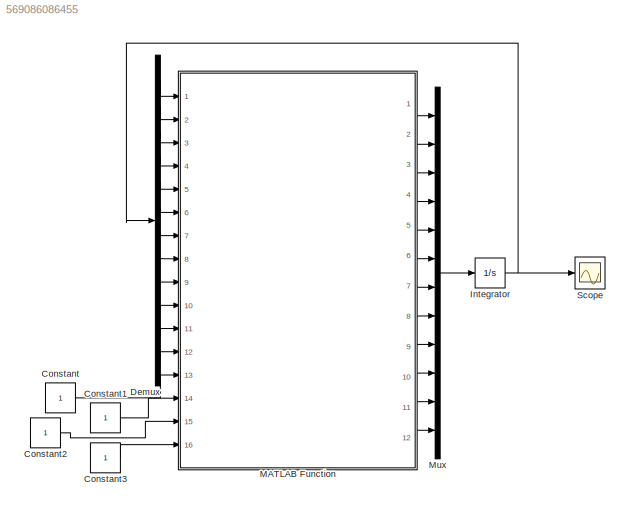
MODEL slx_569086086455
KIND model
CONFIG AbsTol = auto
CONFIG EnableMultiTasking = off
CONFIG FixedStep = auto
CONFIG MaxStep = auto
CONFIG MinStep = auto
CONFIG RelTol = 1e-3
CONFIG SampleTimeConstraint = Unconstrained
CONFIG SolverName = VariableStepAuto
CONFIG StartTime = 0.0
CONFIG StopTime = 10.0
BLOCK [Constant] Constant
BLOCK [Constant] Constant1
BLOCK [Constant] Constant2
BLOCK [Constant] Constant3
BLOCK [Demux] Demux
  Outputs = 12
  Ports = [1, 12]
BLOCK [Integrator] Integrator
  InitialCondition = [0;0;0;0;0;0;0;0;0;0;0;0]
  Ports = [1, 1]
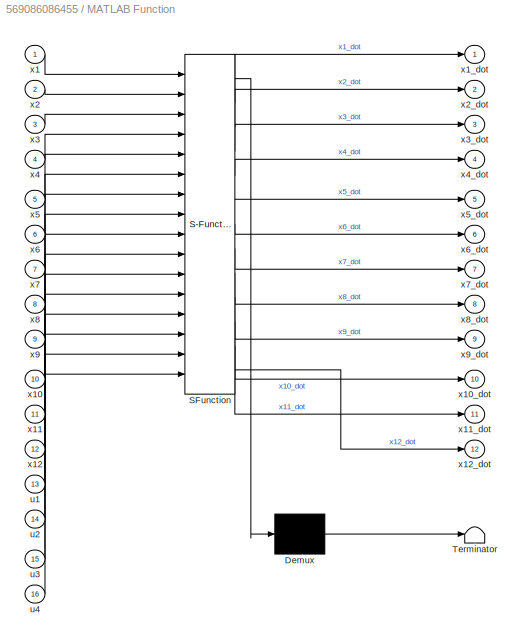
BLOCK [SubSystem] MATLAB Function
  ErrorFcn = Stateflow.Translate.translate
  PermitHierarchicalResolution = ExplicitOnly
  Ports = [16, 12]
  RequestExecContextInheritance = off
  SFBlockType = MATLAB Function
  TreatAsAtomicUnit = on
BLOCK [Demux] MATLAB Function/ Demux 
  Outputs = 1
  Ports = [1, 1]
BLOCK [S-Function] MATLAB Function/ SFunction 
  EnableBusSupport = on
  FunctionName = sf_sfun
  PortCounts = [16 13]
  Ports = [16, 13]
  SFcnIsStateOwnerBlock = off
  SFunctionDeploymentMode = off
  Tag = Stateflow S-Function 2
BLOCK [Terminator] MATLAB Function/ Terminator 
BLOCK [Inport] MATLAB Function/u1
  Port = 13
BLOCK [Inport] MATLAB Function/u2
  Port = 14
BLOCK [Inport] MATLAB Function/u3
  Port = 15
BLOCK [Inport] MATLAB Function/u4
  Port = 16
BLOCK [Inport] MATLAB Function/x1
BLOCK [Inport] MATLAB Function/x10
  Port = 10
BLOCK [Outport] MATLAB Function/x10_dot
  Port = 10
BLOCK [Inport] MATLAB Function/x11
  Port = 11
BLOCK [Outport] MATLAB Function/x11_dot
  Port = 11
BLOCK [Inport] MATLAB Function/x12
  Port = 12
BLOCK [Outport] MATLAB Function/x12_dot
  Port = 12
BLOCK [Outport] MATLAB Function/x1_dot
BLOCK [Inport] MATLAB Function/x2
  Port = 2
BLOCK [Outport] MATLAB Function/x2_dot
  Port = 2
BLOCK [Inport] MATLAB Function/x3
  Port = 3
BLOCK [Outport] MATLAB Function/x3_dot
  Port = 3
BLOCK [Inport] MATLAB Function/x4
  Port = 4
BLOCK [Outport] MATLAB Function/x4_dot
  Port = 4
BLOCK [Inport] MATLAB Function/x5
  Port = 5
BLOCK [Outport] MATLAB Function/x5_dot
  Port = 5
BLOCK [Inport] MATLAB Function/x6
  Port = 6
BLOCK [Outport] MATLAB Function/x6_dot
  Port = 6
BLOCK [Inport] MATLAB Function/x7
  Port = 7
BLOCK [Outport] MATLAB Function/x7_dot
  Port = 7
BLOCK [Inport] MATLAB Function/x8
  Port = 8
BLOCK [Outport] MATLAB Function/x8_dot
  Port = 8
BLOCK [Inport] MATLAB Function/x9
  Port = 9
BLOCK [Outport] MATLAB Function/x9_dot
  Port = 9
BLOCK [Mux] Mux
  DisplayOption = bar
  Inputs = 12
  Ports = [12, 1]
BLOCK [Scope] Scope
  Floating = off
  NumInputPorts = 1
  Ports = [1]
  ScopeSpecificationString = Simulink.scopes.TimeScopeBlockCfg('CurrentConfiguration', extmgr.ConfigurationSet(extmgr.Configuration('Core','General UI',true),extmgr.Configuration('Core','Source UI',true),extmgr.Configuration('Sources','WiredSimulink',true),extmgr.Configuration('Visuals','Time Domain',true,'SerializedDisplays',{struct('MinYLimReal','-439.3125','MaxYLimReal','48.8125','YLabelReal','','MinYLimMag',' 0.00000','Ma...<+1560ch>
LINE Constant1:1 -> MATLAB Function:14
LINE Constant2:1 -> MATLAB Function:15
LINE Constant3:1 -> MATLAB Function:16
LINE Constant:1 -> MATLAB Function:13
LINE Demux:1 -> MATLAB Function:1
LINE Demux:10 -> MATLAB Function:10
LINE Demux:11 -> MATLAB Function:11
LINE Demux:12 -> MATLAB Function:12
LINE Demux:2 -> MATLAB Function:2
LINE Demux:3 -> MATLAB Function:3
LINE Demux:4 -> MATLAB Function:4
LINE Demux:5 -> MATLAB Function:5
LINE Demux:6 -> MATLAB Function:6
LINE Demux:7 -> MATLAB Function:7
LINE Demux:8 -> MATLAB Function:8
LINE Demux:9 -> MATLAB Function:9
NET Integrator:1 -> Demux:1, Scope:1
LINE MATLAB Function:1 -> Mux:1
LINE MATLAB Function:10 -> Mux:10
LINE MATLAB Function:11 -> Mux:11
LINE MATLAB Function:12 -> Mux:12
LINE MATLAB Function:2 -> Mux:2
LINE MATLAB Function:3 -> Mux:3
LINE MATLAB Function:4 -> Mux:4
LINE MATLAB Function:5 -> Mux:5
LINE MATLAB Function:6 -> Mux:6
LINE MATLAB Function:7 -> Mux:7
LINE MATLAB Function:8 -> Mux:8
LINE MATLAB Function:9 -> Mux:9
LINE Mux:1 -> Integrator:1
note: NET lines group one-source signal fan-out (src -> all destinations, sorted); 1:1 wires keep LINE
CHART MATLAB Function states=1 transitions=1
  STATE_LABEL 'eML_blk_kernel()'
  STATE_LABEL 'SCRIPT:\nfunction [x1_dot,x2_dot,x3_dot,x4_dot,x5_dot,x6_dot,x7_dot,x8_dot,x9_dot,x10_dot,x11_dot,x12_dot]= fcn(x1,x2,x3,x4,x5,x6,x7,x8,x9,x10,x11,x12,u1,u2,u3,u4)\n% x=x1;\n% y=x2,\n% z=x3\n% phi=x4;\n% theta=x5;\n% sai=x6;\n% x_dot=x7;\n% y_dot=x8,\n% z_dot=x9\n% phi_dot=x10;\n% theta_dot=x11;\n% sai_dot=x12;\n\nIxx= 1.2; \nIyy= 1.2;\nIzz= 2.3;\nk= 1;\nl= 0.25;\nm= 2;\nb= 0.2;\ng= 9.81;\n\nT = k*(u1+u2+u3+u4);\nx789= -g...<+1422ch>'
CHART  states=0 transitions=0
